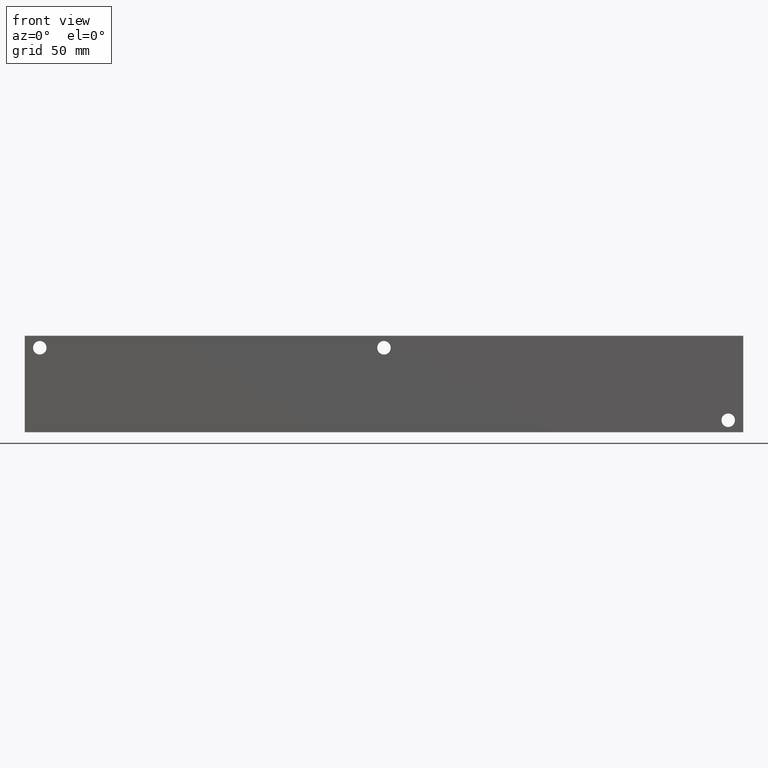
[diagram: clean part render]
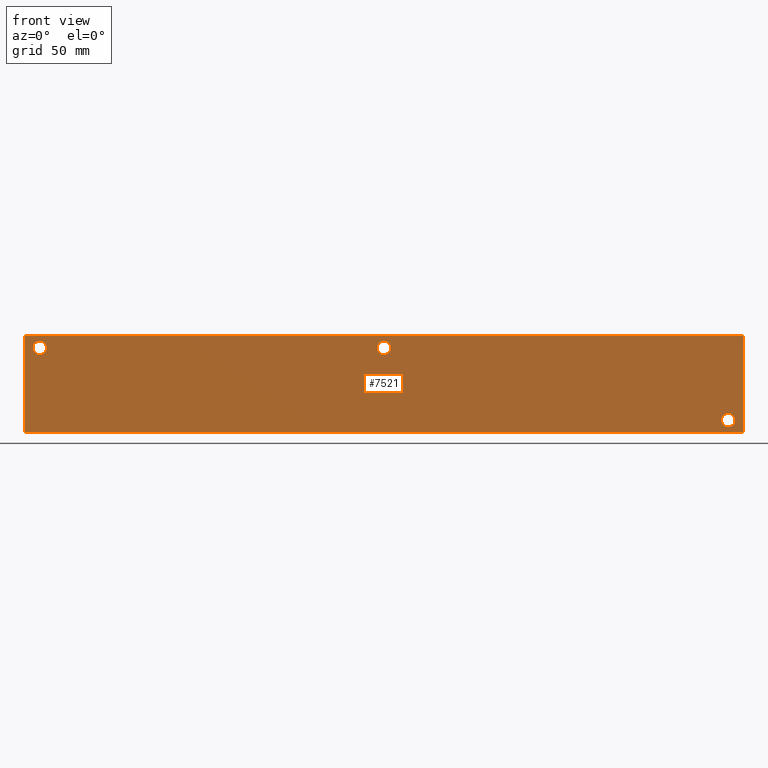
[diagram: same view with one face highlighted and labeled with its STEP entity id]
A machine part, front view. The second image highlights one B-rep face of the part: STEP entity #7521.
In plain terms, the highlighted planar face has unit normal (0, -1, 0).
Its self-contained STEP definition (entity closure, byte-faithful):
#134=CIRCLE('',#7826,3.5687);
#135=CIRCLE('',#7827,3.5687);
#137=CIRCLE('',#7835,3.5687);
#138=CIRCLE('',#7836,3.5687);
#140=CIRCLE('',#7844,3.5687);
#141=CIRCLE('',#7845,3.5687);
#231=FACE_BOUND('',#1285,.T.);
#232=FACE_BOUND('',#1286,.T.);
#233=FACE_BOUND('',#1287,.T.);
#461=PLANE('',#7918);
#845=FACE_OUTER_BOUND('',#1284,.T.);
#1284=EDGE_LOOP('',(#6686,#6687,#6688,#6689));
#1285=EDGE_LOOP('',(#6690,#6691));
#1286=EDGE_LOOP('',(#6692,#6693));
#1287=EDGE_LOOP('',(#6694,#6695));
#1553=LINE('',#11721,#2244);
#1983=LINE('',#12983,#2674);
#1988=LINE('',#12992,#2679);
#1989=LINE('',#12994,#2680);
#2244=VECTOR('',#8297,10.);
#2674=VECTOR('',#9363,10.);
#2679=VECTOR('',#9372,10.);
#2680=VECTOR('',#9375,10.);
#3223=VERTEX_POINT('',#11719);
#3224=VERTEX_POINT('',#11720);
#3555=VERTEX_POINT('',#12806);
#3556=VERTEX_POINT('',#12807);
#3560=VERTEX_POINT('',#12822);
#3561=VERTEX_POINT('',#12823);
#3565=VERTEX_POINT('',#12838);
#3566=VERTEX_POINT('',#12839);
#3610=VERTEX_POINT('',#12981);
#3612=VERTEX_POINT('',#12990);
#4081=EDGE_CURVE('',#3223,#3224,#1553,.T.);
#4556=EDGE_CURVE('',#3555,#3556,#134,.T.);
#4557=EDGE_CURVE('',#3556,#3555,#135,.T.);
#4565=EDGE_CURVE('',#3560,#3561,#137,.T.);
#4566=EDGE_CURVE('',#3561,#3560,#138,.T.);
#4574=EDGE_CURVE('',#3565,#3566,#140,.T.);
#4575=EDGE_CURVE('',#3566,#3565,#141,.T.);
#4641=EDGE_CURVE('',#3610,#3223,#1983,.T.);
#4646=EDGE_CURVE('',#3612,#3224,#1988,.T.);
#4647=EDGE_CURVE('',#3610,#3612,#1989,.T.);
#6686=ORIENTED_EDGE('',*,*,#4647,.T.);
#6687=ORIENTED_EDGE('',*,*,#4646,.T.);
#6688=ORIENTED_EDGE('',*,*,#4081,.F.);
#6689=ORIENTED_EDGE('',*,*,#4641,.F.);
#6690=ORIENTED_EDGE('',*,*,#4556,.T.);
#6691=ORIENTED_EDGE('',*,*,#4557,.T.);
#6692=ORIENTED_EDGE('',*,*,#4565,.T.);
#6693=ORIENTED_EDGE('',*,*,#4566,.T.);
#6694=ORIENTED_EDGE('',*,*,#4574,.T.);
#6695=ORIENTED_EDGE('',*,*,#4575,.T.);
#7521=ADVANCED_FACE('',(#845,#231,#232,#233),#461,.T.);
#7826=AXIS2_PLACEMENT_3D('',#12808,#9152,#9153);
#7827=AXIS2_PLACEMENT_3D('',#12809,#9154,#9155);
#7835=AXIS2_PLACEMENT_3D('',#12824,#9172,#9173);
#7836=AXIS2_PLACEMENT_3D('',#12825,#9174,#9175);
#7844=AXIS2_PLACEMENT_3D('',#12840,#9192,#9193);
#7845=AXIS2_PLACEMENT_3D('',#12841,#9194,#9195);
#7918=AXIS2_PLACEMENT_3D('',#12993,#9373,#9374);
#8297=DIRECTION('',(1.,0.,0.));
#9152=DIRECTION('center_axis',(0.,1.,0.));
#9153=DIRECTION('ref_axis',(1.,0.,0.));
#9154=DIRECTION('center_axis',(0.,1.,0.));
#9155=DIRECTION('ref_axis',(1.,0.,0.));
#9172=DIRECTION('center_axis',(0.,1.,0.));
#9173=DIRECTION('ref_axis',(1.,0.,0.));
#9174=DIRECTION('center_axis',(0.,1.,0.));
#9175=DIRECTION('ref_axis',(1.,0.,0.));
#9192=DIRECTION('center_axis',(0.,1.,0.));
#9193=DIRECTION('ref_axis',(1.,0.,0.));
#9194=DIRECTION('center_axis',(0.,1.,0.));
#9195=DIRECTION('ref_axis',(1.,0.,0.));
#9363=DIRECTION('',(0.,0.,1.));
#9372=DIRECTION('',(0.,0.,1.));
#9373=DIRECTION('center_axis',(0.,-1.,0.));
#9374=DIRECTION('ref_axis',(1.,0.,0.));
#9375=DIRECTION('',(1.,0.,0.));
#11719=CARTESIAN_POINT('',(0.,0.,50.8));
#11720=CARTESIAN_POINT('',(377.825,0.,50.8));
#11721=CARTESIAN_POINT('',(0.,0.,50.8));
#12806=CARTESIAN_POINT('',(373.4689,0.,6.35));
#12807=CARTESIAN_POINT('',(366.3315,0.,6.35));
#12808=CARTESIAN_POINT('Origin',(369.9002,0.,6.35));
#12809=CARTESIAN_POINT('Origin',(369.9002,0.,6.35));
#12822=CARTESIAN_POINT('',(11.4935,0.,44.45));
#12823=CARTESIAN_POINT('',(4.3561,0.,44.45));
#12824=CARTESIAN_POINT('Origin',(7.9248,0.,44.45));
#12825=CARTESIAN_POINT('Origin',(7.9248,0.,44.45));
#12838=CARTESIAN_POINT('',(192.4685,0.,44.45));
#12839=CARTESIAN_POINT('',(185.3311,0.,44.45));
#12840=CARTESIAN_POINT('Origin',(188.8998,0.,44.45));
#12841=CARTESIAN_POINT('Origin',(188.8998,0.,44.45));
#12981=CARTESIAN_POINT('',(0.,0.,0.));
#12983=CARTESIAN_POINT('',(0.,0.,0.));
#12990=CARTESIAN_POINT('',(377.825,0.,0.));
#12992=CARTESIAN_POINT('',(377.825,0.,0.));
#12993=CARTESIAN_POINT('Origin',(0.,0.,0.));
#12994=CARTESIAN_POINT('',(0.,0.,0.));